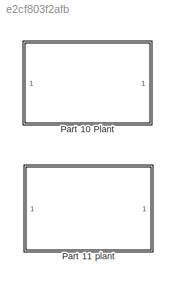
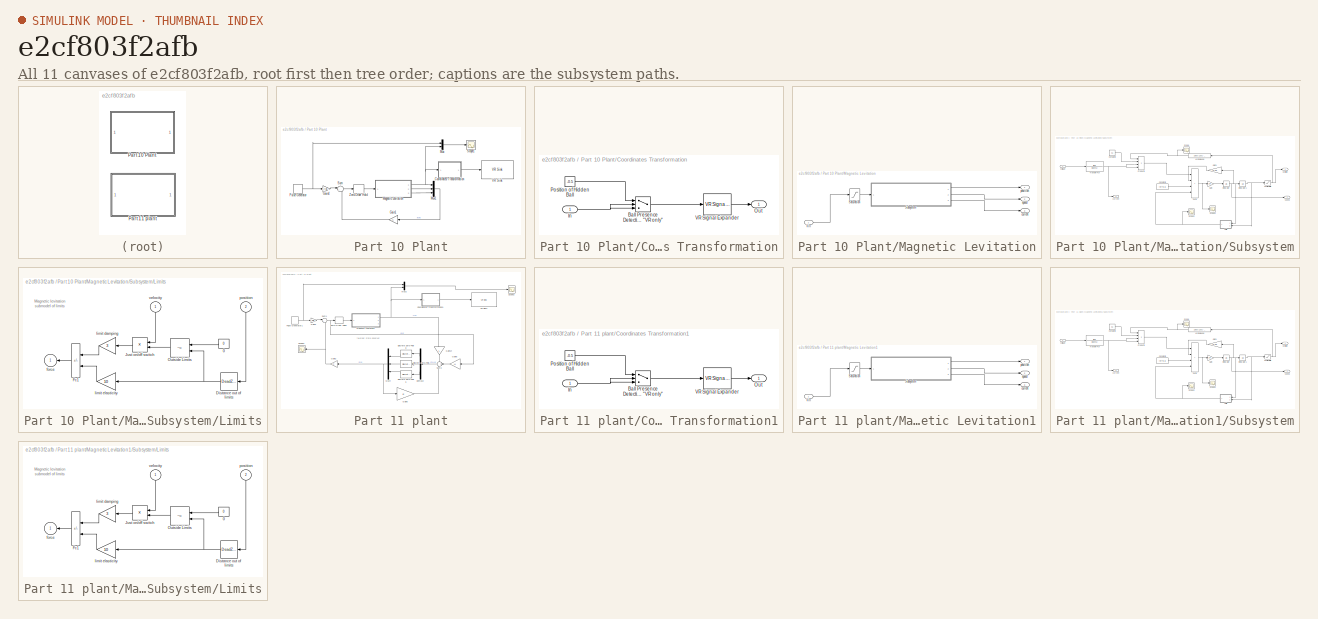
[diagram: thumbnail index - all 11 canvases of the model, root first then tree order]
MODEL slx_e2cf803f2afb
KIND model
CONFIG AbsTol = 1e-5
CONFIG EnableMultiTasking = off
CONFIG FixedStep = 1e-3
CONFIG MaxStep = 0.001
CONFIG MinStep = auto
CONFIG RelTol = 1e-3
CONFIG SampleTimeConstraint = Unconstrained
CONFIG Solver = ode5
CONFIG SolverName = ode5
CONFIG StartTime = 0.0
CONFIG StopTime = 5
WORKSPACE source: MATLAB code (in-file)
WORKSPACE Ts = 1e-3  (= 0.001)
BLOCK [SubSystem] Part 10 Plant
  Ports = []
BLOCK [SubSystem] Part 10 Plant/Coordinates Transformation
  Permissions = ReadOnly
  Ports = [1, 1]
BLOCK [Switch] Part 10 Plant/Coordinates Transformation/Ball Presence Detection Value > Threshold = Ball Not Present 1 for "VR only"
  SaturateOnIntegerOverflow = off
  Threshold = 1
BLOCK [Inport] Part 10 Plant/Coordinates Transformation/In
BLOCK [Outport] Part 10 Plant/Coordinates Transformation/Out
BLOCK [Constant] Part 10 Plant/Coordinates Transformation/Position of Hidden Ball
  Value = -0.5
BLOCK [Reference] Part 10 Plant/Coordinates Transformation/VR Signal Expander  REF=vrlib/VR Signal Expander
  Ports = [1, 1]
  SourceBlock = vrlib/VR Signal Expander
  SourceType = VR Signal Expander
BLOCK [Gain] Part 10 Plant/Gain1
  Gain = K
  Multiplication = Matrix(K*u)
BLOCK [Gain] Part 10 Plant/Gain4
  Gain = k_follow*1.01
BLOCK [SubSystem] Part 10 Plant/Magnetic Levitation
  Ports = [1, 3]
BLOCK [Saturate] Part 10 Plant/Magnetic Levitation/Saturation
  LowerLimit = 0
  UpperLimit = 10
  ZeroCross = off
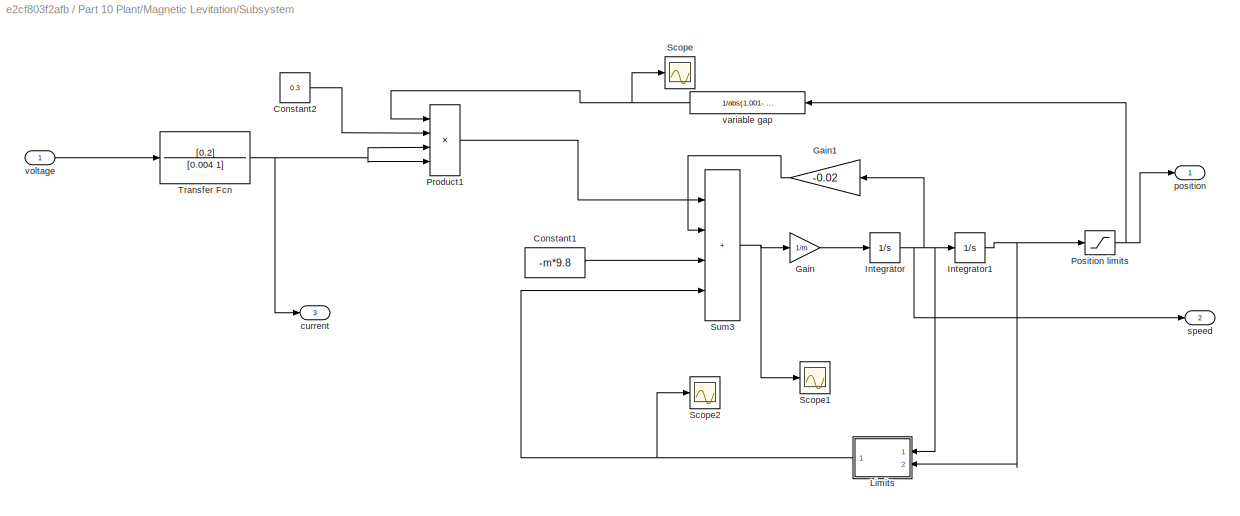
BLOCK [SubSystem] Part 10 Plant/Magnetic Levitation/Subsystem
  Ports = [1, 3]
BLOCK [Constant] Part 10 Plant/Magnetic Levitation/Subsystem/Constant1
  Value = -m*9.8
BLOCK [Constant] Part 10 Plant/Magnetic Levitation/Subsystem/Constant2
  Value = 0.3
BLOCK [Gain] Part 10 Plant/Magnetic Levitation/Subsystem/Gain
  Gain = 1/m
BLOCK [Gain] Part 10 Plant/Magnetic Levitation/Subsystem/Gain1
  Gain = -0.02
BLOCK [Integrator] Part 10 Plant/Magnetic Levitation/Subsystem/Integrator
  Ports = [1, 1]
BLOCK [Integrator] Part 10 Plant/Magnetic Levitation/Subsystem/Integrator1
  LimitOutput = on
  LowerSaturationLimit = 0
  Ports = [1, 1]
  UpperSaturationLimit = 1
BLOCK [SubSystem] Part 10 Plant/Magnetic Levitation/Subsystem/Limits
  Ports = [2, 1]
  ShowPortLabels = none
BLOCK [Constant] Part 10 Plant/Magnetic Levitation/Subsystem/Limits/0
  Value = 0
BLOCK [DeadZone] Part 10 Plant/Magnetic Levitation/Subsystem/Limits/Distance out of limits
  LowerValue = 0.002
  UpperValue = 1
  ZeroCross = off
BLOCK [Sum] Part 10 Plant/Magnetic Levitation/Subsystem/Limits/Fc1
  IconShape = rectangular
  InputSameDT = on
  Inputs = --
  OutDataTypeStr = Inherit: Same as first input
  Ports = [2, 1]
  SaturateOnIntegerOverflow = on
BLOCK [Product] Part 10 Plant/Magnetic Levitation/Subsystem/Limits/Just on//off switch 
  InputSameDT = on
  OutDataTypeStr = Inherit: Same as first input
  Ports = [2, 1]
  SaturateOnIntegerOverflow = on
BLOCK [RelationalOperator] Part 10 Plant/Magnetic Levitation/Subsystem/Limits/Outside Limits
  Operator = ~=
  Ports = [2, 1]
BLOCK [Outport] Part 10 Plant/Magnetic Levitation/Subsystem/Limits/force
BLOCK [Gain] Part 10 Plant/Magnetic Levitation/Subsystem/Limits/limit damping
  Gain = 3
  OutDataTypeStr = Inherit: Same as input
  ParamDataTypeStr = Inherit: Same as input
  SaturateOnIntegerOverflow = on
BLOCK [Gain] Part 10 Plant/Magnetic Levitation/Subsystem/Limits/limit elasticity
  Gain = 10
  OutDataTypeStr = Inherit: Same as input
  ParamDataTypeStr = Inherit: Same as input
  SaturateOnIntegerOverflow = on
BLOCK [Inport] Part 10 Plant/Magnetic Levitation/Subsystem/Limits/position
  Port = 2
BLOCK [Inport] Part 10 Plant/Magnetic Levitation/Subsystem/Limits/velocity
BLOCK [Saturate] Part 10 Plant/Magnetic Levitation/Subsystem/Position limits
  LowerLimit = 0.001
  UpperLimit = 0.998
  ZeroCross = off
BLOCK [Product] Part 10 Plant/Magnetic Levitation/Subsystem/Product1
  Inputs = 4
  Ports = [4, 1]
BLOCK [Scope] Part 10 Plant/Magnetic Levitation/Subsystem/Scope
  Floating = off
  NumInputPorts = 1
  Ports = [1]
  ScopeSpecificationString = Simulink.scopes.TimeScopeBlockCfg('CurrentConfiguration', extmgr.ConfigurationSet(extmgr.Configuration('Core','General UI',true),extmgr.Configuration('Core','Source UI',true),extmgr.Configuration('Sources','WiredSimulink',true,'DataLoggingVariableName','ScopeData1'),extmgr.Configuration('Visuals','Time Domain',true,'SerializedDisplays',{struct('MinYLimReal','-40.54054','MaxYLimReal','374.87487','Y...<+1381ch>
BLOCK [Scope] Part 10 Plant/Magnetic Levitation/Subsystem/Scope1
  Floating = off
  NumInputPorts = 1
  Ports = [1]
  ScopeSpecificationString = Simulink.scopes.TimeScopeBlockCfg('CurrentConfiguration', extmgr.ConfigurationSet(extmgr.Configuration('Core','General UI',true),extmgr.Configuration('Core','Source UI',true),extmgr.Configuration('Sources','WiredSimulink',true,'DataLoggingVariableName','ScopeData2'),extmgr.Configuration('Visuals','Time Domain',true,'SerializedDisplays',{struct('MinYLimReal','-21376391083219120442781708779858395089...<+3841ch>
BLOCK [Scope] Part 10 Plant/Magnetic Levitation/Subsystem/Scope2
  Floating = off
  NumInputPorts = 1
  Ports = [1]
  ScopeSpecificationString = Simulink.scopes.TimeScopeBlockCfg('CurrentConfiguration', extmgr.ConfigurationSet(extmgr.Configuration('Core','General UI',true),extmgr.Configuration('Core','Source UI',true),extmgr.Configuration('Sources','WiredSimulink',true,'DataLoggingVariableName','ScopeData3'),extmgr.Configuration('Visuals','Time Domain',true,'SerializedDisplays',{struct('MinYLimReal','-0.1107','MaxYLimReal','1.19629','YLabe...<+1363ch>
BLOCK [Sum] Part 10 Plant/Magnetic Levitation/Subsystem/Sum3
  IconShape = rectangular
  Inputs = ++++
  Ports = [4, 1]
BLOCK [TransferFcn] Part 10 Plant/Magnetic Levitation/Subsystem/Transfer Fcn
  Denominator = [0.004 1]
  Numerator = [0.2]
BLOCK [Outport] Part 10 Plant/Magnetic Levitation/Subsystem/current
  Port = 3
BLOCK [Outport] Part 10 Plant/Magnetic Levitation/Subsystem/position 
BLOCK [Outport] Part 10 Plant/Magnetic Levitation/Subsystem/speed
  Port = 2
BLOCK [Fcn] Part 10 Plant/Magnetic Levitation/Subsystem/variable gap
  Expr = 1/abs(1.001- u)
BLOCK [Inport] Part 10 Plant/Magnetic Levitation/Subsystem/voltage
BLOCK [Inport] Part 10 Plant/Magnetic Levitation/Vin
BLOCK [Outport] Part 10 Plant/Magnetic Levitation/current
  Port = 3
BLOCK [Outport] Part 10 Plant/Magnetic Levitation/position
BLOCK [Outport] Part 10 Plant/Magnetic Levitation/speed
  Port = 2
BLOCK [Mux] Part 10 Plant/Mux
  DisplayOption = bar
  Inputs = 2
  Ports = [2, 1]
BLOCK [Mux] Part 10 Plant/Mux1
  DisplayOption = bar
  Inputs = 3
  Ports = [3, 1]
BLOCK [DiscretePulseGenerator] Part 10 Plant/Pulse Generator
  Amplitude = yd
  Period = 11
  Ports = [0, 1]
  PulseType = Time based
  PulseWidth = 50
BLOCK [Scope] Part 10 Plant/Scope1
  Floating = off
  NumInputPorts = 1
  Ports = [1]
  ScopeSpecificationString = Simulink.scopes.TimeScopeBlockCfg('CurrentConfiguration', extmgr.ConfigurationSet(extmgr.Configuration('Core','General UI',true),extmgr.Configuration('Core','Source UI',true),extmgr.Configuration('Sources','WiredSimulink',true,'DataLoggingVariableName','ScopeData1'),extmgr.Configuration('Visuals','Time Domain',true,'SerializedDisplays',{struct('MinYLimReal','-0.06418','MaxYLimReal','0.5876','YLabe...<+1469ch>
BLOCK [Sum] Part 10 Plant/Sum
  InputSameDT = on
  Inputs = |+-
  OutDataTypeStr = Inherit: Same as first input
  Ports = [2, 1]
  SaturateOnIntegerOverflow = on
BLOCK [Reference] Part 10 Plant/VR Sink  REF=vrlib/VR Sink
  InstantiateOnLoad = on
  Ports = [1]
  SourceBlock = vrlib/VR Sink
  SourceType = Virtual Reality Sink
BLOCK [ZeroOrderHold] Part 10 Plant/Zero-Order Hold
  SampleTime = 0.01
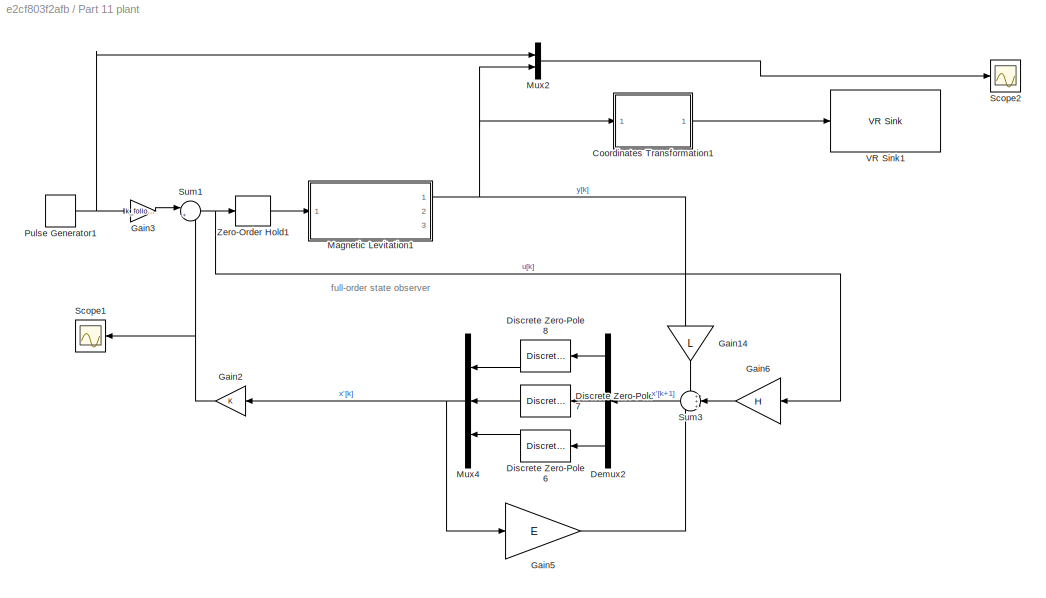
BLOCK [SubSystem] Part 11 plant
  Ports = []
BLOCK [SubSystem] Part 11 plant/Coordinates Transformation1
  Permissions = ReadOnly
  Ports = [1, 1]
BLOCK [Switch] Part 11 plant/Coordinates Transformation1/Ball Presence Detection Value > Threshold = Ball Not Present 1 for "VR only"
  SaturateOnIntegerOverflow = off
  Threshold = 1
BLOCK [Inport] Part 11 plant/Coordinates Transformation1/In
BLOCK [Outport] Part 11 plant/Coordinates Transformation1/Out
BLOCK [Constant] Part 11 plant/Coordinates Transformation1/Position of Hidden Ball
  Value = -0.5
BLOCK [Reference] Part 11 plant/Coordinates Transformation1/VR Signal Expander  REF=vrlib/VR Signal Expander
  Ports = [1, 1]
  SourceBlock = vrlib/VR Signal Expander
  SourceType = VR Signal Expander
BLOCK [Demux] Part 11 plant/Demux2
  Outputs = 3
  Ports = [1, 3]
BLOCK [DiscreteZeroPole] Part 11 plant/Discrete Zero-Pole6
  Gain = 1
  Poles = [0]
  SampleTime = 0.01
  Zeros = []
BLOCK [DiscreteZeroPole] Part 11 plant/Discrete Zero-Pole7
  Gain = 1
  Poles = [0]
  SampleTime = 0.01
  Zeros = []
BLOCK [DiscreteZeroPole] Part 11 plant/Discrete Zero-Pole8
  Gain = 1
  Poles = [0]
  SampleTime = 0.01
  Zeros = []
BLOCK [Gain] Part 11 plant/Gain14
  Gain = L
  Multiplication = Matrix(K*u)
BLOCK [Gain] Part 11 plant/Gain2
  Gain = K
  Multiplication = Matrix(K*u)
BLOCK [Gain] Part 11 plant/Gain3
  Gain = k_follow*0.39
BLOCK [Gain] Part 11 plant/Gain5
  Gain = E
  Multiplication = Matrix(K*u)
BLOCK [Gain] Part 11 plant/Gain6
  Gain = H
  Multiplication = Matrix(K*u)
BLOCK [SubSystem] Part 11 plant/Magnetic Levitation1
  Ports = [1, 3]
BLOCK [Saturate] Part 11 plant/Magnetic Levitation1/Saturation
  LowerLimit = 0
  UpperLimit = 10
  ZeroCross = off
BLOCK [SubSystem] Part 11 plant/Magnetic Levitation1/Subsystem
  Ports = [1, 3]
BLOCK [Constant] Part 11 plant/Magnetic Levitation1/Subsystem/Constant1
  Value = -m*9.8
BLOCK [Constant] Part 11 plant/Magnetic Levitation1/Subsystem/Constant2
  Value = 0.3
BLOCK [Gain] Part 11 plant/Magnetic Levitation1/Subsystem/Gain
  Gain = 1/m
BLOCK [Gain] Part 11 plant/Magnetic Levitation1/Subsystem/Gain1
  Gain = -0.02
BLOCK [Integrator] Part 11 plant/Magnetic Levitation1/Subsystem/Integrator
  Ports = [1, 1]
BLOCK [Integrator] Part 11 plant/Magnetic Levitation1/Subsystem/Integrator1
  LimitOutput = on
  LowerSaturationLimit = 0
  Ports = [1, 1]
  UpperSaturationLimit = 1
BLOCK [SubSystem] Part 11 plant/Magnetic Levitation1/Subsystem/Limits
  Ports = [2, 1]
  ShowPortLabels = none
BLOCK [Constant] Part 11 plant/Magnetic Levitation1/Subsystem/Limits/0
  Value = 0
BLOCK [DeadZone] Part 11 plant/Magnetic Levitation1/Subsystem/Limits/Distance out of limits
  LowerValue = 0.002
  UpperValue = 1
  ZeroCross = off
BLOCK [Sum] Part 11 plant/Magnetic Levitation1/Subsystem/Limits/Fc1
  IconShape = rectangular
  InputSameDT = on
  Inputs = --
  OutDataTypeStr = Inherit: Same as first input
  Ports = [2, 1]
  SaturateOnIntegerOverflow = on
BLOCK [Product] Part 11 plant/Magnetic Levitation1/Subsystem/Limits/Just on//off switch 
  InputSameDT = on
  OutDataTypeStr = Inherit: Same as first input
  Ports = [2, 1]
  SaturateOnIntegerOverflow = on
BLOCK [RelationalOperator] Part 11 plant/Magnetic Levitation1/Subsystem/Limits/Outside Limits
  Operator = ~=
  Ports = [2, 1]
BLOCK [Outport] Part 11 plant/Magnetic Levitation1/Subsystem/Limits/force
BLOCK [Gain] Part 11 plant/Magnetic Levitation1/Subsystem/Limits/limit damping
  Gain = 3
  OutDataTypeStr = Inherit: Same as input
  ParamDataTypeStr = Inherit: Same as input
  SaturateOnIntegerOverflow = on
BLOCK [Gain] Part 11 plant/Magnetic Levitation1/Subsystem/Limits/limit elasticity
  Gain = 10
  OutDataTypeStr = Inherit: Same as input
  ParamDataTypeStr = Inherit: Same as input
  SaturateOnIntegerOverflow = on
BLOCK [Inport] Part 11 plant/Magnetic Levitation1/Subsystem/Limits/position
  Port = 2
BLOCK [Inport] Part 11 plant/Magnetic Levitation1/Subsystem/Limits/velocity
BLOCK [Saturate] Part 11 plant/Magnetic Levitation1/Subsystem/Position limits
  LowerLimit = 0.001
  UpperLimit = 0.998
  ZeroCross = off
BLOCK [Product] Part 11 plant/Magnetic Levitation1/Subsystem/Product1
  Inputs = 4
  Ports = [4, 1]
BLOCK [Scope] Part 11 plant/Magnetic Levitation1/Subsystem/Scope
  Floating = off
  NumInputPorts = 1
  Ports = [1]
  ScopeSpecificationString = Simulink.scopes.TimeScopeBlockCfg('CurrentConfiguration', extmgr.ConfigurationSet(extmgr.Configuration('Core','General UI',true),extmgr.Configuration('Core','Source UI',true),extmgr.Configuration('Sources','WiredSimulink',true,'DataLoggingVariableName','ScopeData1'),extmgr.Configuration('Visuals','Time Domain',true,'SerializedDisplays',{struct('MinYLimReal','-40.54054','MaxYLimReal','374.87487','Y...<+1381ch>
BLOCK [Scope] Part 11 plant/Magnetic Levitation1/Subsystem/Scope1
  Floating = off
  NumInputPorts = 1
  Ports = [1]
  ScopeSpecificationString = Simulink.scopes.TimeScopeBlockCfg('CurrentConfiguration', extmgr.ConfigurationSet(extmgr.Configuration('Core','General UI',true),extmgr.Configuration('Core','Source UI',true),extmgr.Configuration('Sources','WiredSimulink',true,'DataLoggingVariableName','ScopeData2'),extmgr.Configuration('Visuals','Time Domain',true,'SerializedDisplays',{struct('MinYLimReal','-21376391083219120442781708779858395089...<+3841ch>
BLOCK [Scope] Part 11 plant/Magnetic Levitation1/Subsystem/Scope2
  Floating = off
  NumInputPorts = 1
  Ports = [1]
  ScopeSpecificationString = Simulink.scopes.TimeScopeBlockCfg('CurrentConfiguration', extmgr.ConfigurationSet(extmgr.Configuration('Core','General UI',true),extmgr.Configuration('Core','Source UI',true),extmgr.Configuration('Sources','WiredSimulink',true,'DataLoggingVariableName','ScopeData3'),extmgr.Configuration('Visuals','Time Domain',true,'SerializedDisplays',{struct('MinYLimReal','-0.1107','MaxYLimReal','1.19629','YLabe...<+1363ch>
BLOCK [Sum] Part 11 plant/Magnetic Levitation1/Subsystem/Sum3
  IconShape = rectangular
  Inputs = ++++
  Ports = [4, 1]
BLOCK [TransferFcn] Part 11 plant/Magnetic Levitation1/Subsystem/Transfer Fcn
  Denominator = [0.004 1]
  Numerator = [0.2]
BLOCK [Outport] Part 11 plant/Magnetic Levitation1/Subsystem/current
  Port = 3
BLOCK [Outport] Part 11 plant/Magnetic Levitation1/Subsystem/position 
BLOCK [Outport] Part 11 plant/Magnetic Levitation1/Subsystem/speed
  Port = 2
BLOCK [Fcn] Part 11 plant/Magnetic Levitation1/Subsystem/variable gap
  Expr = 1/abs(1.001- u)
BLOCK [Inport] Part 11 plant/Magnetic Levitation1/Subsystem/voltage
BLOCK [Inport] Part 11 plant/Magnetic Levitation1/Vin
BLOCK [Outport] Part 11 plant/Magnetic Levitation1/current
  Port = 3
BLOCK [Outport] Part 11 plant/Magnetic Levitation1/position
BLOCK [Outport] Part 11 plant/Magnetic Levitation1/speed
  Port = 2
BLOCK [Mux] Part 11 plant/Mux2
  DisplayOption = bar
  Inputs = 2
  Ports = [2, 1]
BLOCK [Mux] Part 11 plant/Mux4
  DisplayOption = bar
  Inputs = 3
  Ports = [3, 1]
BLOCK [DiscretePulseGenerator] Part 11 plant/Pulse Generator1
  Amplitude = yd
  Period = 11
  Ports = [0, 1]
  PulseType = Time based
  PulseWidth = 50
BLOCK [Scope] Part 11 plant/Scope1
  Floating = off
  NumInputPorts = 1
  Ports = [1]
  ScopeSpecificationString = Simulink.scopes.TimeScopeBlockCfg('CurrentConfiguration', extmgr.ConfigurationSet(extmgr.Configuration('Core','General UI',true),extmgr.Configuration('Core','Source UI',true),extmgr.Configuration('Sources','WiredSimulink',true,'DataLoggingVariableName','ScopeData1'),extmgr.Configuration('Visuals','Time Domain',true,'SerializedDisplays',{struct('MinYLimReal','-16611476444762614587135434460960474579...<+1940ch>
BLOCK [Scope] Part 11 plant/Scope2
  Floating = off
  NumInputPorts = 1
  Ports = [1]
  ScopeSpecificationString = Simulink.scopes.TimeScopeBlockCfg('CurrentConfiguration', extmgr.ConfigurationSet(extmgr.Configuration('Core','General UI',true),extmgr.Configuration('Core','Source UI',true),extmgr.Configuration('Sources','WiredSimulink',true,'DataLoggingVariableName','ScopeData2'),extmgr.Configuration('Visuals','Time Domain',true,'SerializedDisplays',{struct('MinYLimReal','-0.04762','MaxYLimReal','0.43863','YLab...<+1415ch>
BLOCK [Sum] Part 11 plant/Sum1
  InputSameDT = on
  Inputs = |+-
  OutDataTypeStr = Inherit: Same as first input
  Ports = [2, 1]
  SaturateOnIntegerOverflow = on
BLOCK [Sum] Part 11 plant/Sum3
  Inputs = +++
  Ports = [3, 1]
BLOCK [Reference] Part 11 plant/VR Sink1  REF=vrlib/VR Sink
  InstantiateOnLoad = on
  Ports = [1]
  SourceBlock = vrlib/VR Sink
  SourceType = Virtual Reality Sink
BLOCK [ZeroOrderHold] Part 11 plant/Zero-Order Hold1
  SampleTime = 0.01
ANNOTATION Part 10 Plant/Magnetic Levitation/Subsystem/Limits: Magnetic levitation submodel of limits
ANNOTATION Part 11 plant: full-order state observer
ANNOTATION Part 11 plant/Magnetic Levitation1/Subsystem/Limits: Magnetic levitation submodel of limits
LINE Part 10 Plant/Coordinates Transformation/Ball Presence Detection Value > Threshold = Ball Not Present 1 for "VR only":1 -> Part 10 Plant/Coordinates Transformation/VR Signal Expander:1
NET Part 10 Plant/Coordinates Transformation/In:1 -> Part 10 Plant/Coordinates Transformation/Ball Presence Detection Value > Threshold = Ball Not Present 1 for "VR only":2, Part 10 Plant/Coordinates Transformation/Ball Presence Detection Value > Threshold = Ball Not Present 1 for "VR only":3
LINE Part 10 Plant/Coordinates Transformation/Position of Hidden Ball:1 -> Part 10 Plant/Coordinates Transformation/Ball Presence Detection Value > Threshold = Ball Not Present 1 for "VR only":1
LINE Part 10 Plant/Coordinates Transformation/VR Signal Expander:1 -> Part 10 Plant/Coordinates Transformation/Out:1
LINE Part 10 Plant/Coordinates Transformation:1 -> Part 10 Plant/VR Sink:1
LINE Part 10 Plant/Gain1:1 -> Part 10 Plant/Sum:2
LINE Part 10 Plant/Gain4:1 -> Part 10 Plant/Sum:1
LINE Part 10 Plant/Magnetic Levitation/Saturation:1 -> Part 10 Plant/Magnetic Levitation/Subsystem:1
LINE Part 10 Plant/Magnetic Levitation/Subsystem/Constant1:1 -> Part 10 Plant/Magnetic Levitation/Subsystem/Sum3:3
LINE Part 10 Plant/Magnetic Levitation/Subsystem/Constant2:1 -> Part 10 Plant/Magnetic Levitation/Subsystem/Product1:2
LINE Part 10 Plant/Magnetic Levitation/Subsystem/Gain1:1 -> Part 10 Plant/Magnetic Levitation/Subsystem/Sum3:2
LINE Part 10 Plant/Magnetic Levitation/Subsystem/Gain:1 -> Part 10 Plant/Magnetic Levitation/Subsystem/Integrator:1
NET Part 10 Plant/Magnetic Levitation/Subsystem/Integrator1:1 -> Part 10 Plant/Magnetic Levitation/Subsystem/Limits:2, Part 10 Plant/Magnetic Levitation/Subsystem/Position limits:1
NET Part 10 Plant/Magnetic Levitation/Subsystem/Integrator:1 -> Part 10 Plant/Magnetic Levitation/Subsystem/Gain1:1, Part 10 Plant/Magnetic Levitation/Subsystem/Integrator1:1, Part 10 Plant/Magnetic Levitation/Subsystem/Limits:1, Part 10 Plant/Magnetic Levitation/Subsystem/speed:1
LINE Part 10 Plant/Magnetic Levitation/Subsystem/Limits/0:1 -> Part 10 Plant/Magnetic Levitation/Subsystem/Limits/Outside Limits:1
NET Part 10 Plant/Magnetic Levitation/Subsystem/Limits/Distance out of limits:1 -> Part 10 Plant/Magnetic Levitation/Subsystem/Limits/Outside Limits:2, Part 10 Plant/Magnetic Levitation/Subsystem/Limits/limit elasticity:1
LINE Part 10 Plant/Magnetic Levitation/Subsystem/Limits/Fc1:1 -> Part 10 Plant/Magnetic Levitation/Subsystem/Limits/force:1
LINE Part 10 Plant/Magnetic Levitation/Subsystem/Limits/Just on//off switch :1 -> Part 10 Plant/Magnetic Levitation/Subsystem/Limits/limit damping:1
LINE Part 10 Plant/Magnetic Levitation/Subsystem/Limits/Outside Limits:1 -> Part 10 Plant/Magnetic Levitation/Subsystem/Limits/Just on//off switch :2
LINE Part 10 Plant/Magnetic Levitation/Subsystem/Limits/limit damping:1 -> Part 10 Plant/Magnetic Levitation/Subsystem/Limits/Fc1:1
LINE Part 10 Plant/Magnetic Levitation/Subsystem/Limits/limit elasticity:1 -> Part 10 Plant/Magnetic Levitation/Subsystem/Limits/Fc1:2
LINE Part 10 Plant/Magnetic Levitation/Subsystem/Limits/position:1 -> Part 10 Plant/Magnetic Levitation/Subsystem/Limits/Distance out of limits:1
LINE Part 10 Plant/Magnetic Levitation/Subsystem/Limits/velocity:1 -> Part 10 Plant/Magnetic Levitation/Subsystem/Limits/Just on//off switch :1
NET Part 10 Plant/Magnetic Levitation/Subsystem/Limits:1 -> Part 10 Plant/Magnetic Levitation/Subsystem/Scope2:1, Part 10 Plant/Magnetic Levitation/Subsystem/Sum3:4
NET Part 10 Plant/Magnetic Levitation/Subsystem/Position limits:1 -> Part 10 Plant/Magnetic Levitation/Subsystem/position :1, Part 10 Plant/Magnetic Levitation/Subsystem/variable gap:1
LINE Part 10 Plant/Magnetic Levitation/Subsystem/Product1:1 -> Part 10 Plant/Magnetic Levitation/Subsystem/Sum3:1
NET Part 10 Plant/Magnetic Levitation/Subsystem/Sum3:1 -> Part 10 Plant/Magnetic Levitation/Subsystem/Gain:1, Part 10 Plant/Magnetic Levitation/Subsystem/Scope1:1
NET Part 10 Plant/Magnetic Levitation/Subsystem/Transfer Fcn:1 -> Part 10 Plant/Magnetic Levitation/Subsystem/Product1:3, Part 10 Plant/Magnetic Levitation/Subsystem/Product1:4, Part 10 Plant/Magnetic Levitation/Subsystem/current:1
NET Part 10 Plant/Magnetic Levitation/Subsystem/variable gap:1 -> Part 10 Plant/Magnetic Levitation/Subsystem/Product1:1, Part 10 Plant/Magnetic Levitation/Subsystem/Scope:1
LINE Part 10 Plant/Magnetic Levitation/Subsystem/voltage:1 -> Part 10 Plant/Magnetic Levitation/Subsystem/Transfer Fcn:1
LINE Part 10 Plant/Magnetic Levitation/Subsystem:1 -> Part 10 Plant/Magnetic Levitation/position:1
LINE Part 10 Plant/Magnetic Levitation/Subsystem:2 -> Part 10 Plant/Magnetic Levitation/speed:1
LINE Part 10 Plant/Magnetic Levitation/Subsystem:3 -> Part 10 Plant/Magnetic Levitation/current:1
LINE Part 10 Plant/Magnetic Levitation/Vin:1 -> Part 10 Plant/Magnetic Levitation/Saturation:1
NET Part 10 Plant/Magnetic Levitation:1 -> Part 10 Plant/Coordinates Transformation:1, Part 10 Plant/Mux1:1, Part 10 Plant/Mux:2
LINE Part 10 Plant/Magnetic Levitation:2 -> Part 10 Plant/Mux1:2
LINE Part 10 Plant/Magnetic Levitation:3 -> Part 10 Plant/Mux1:3
LINE Part 10 Plant/Mux1:1 -> Part 10 Plant/Gain1:1
LINE Part 10 Plant/Mux:1 -> Part 10 Plant/Scope1:1
NET Part 10 Plant/Pulse Generator:1 -> Part 10 Plant/Gain4:1, Part 10 Plant/Mux:1
LINE Part 10 Plant/Sum:1 -> Part 10 Plant/Zero-Order Hold:1
LINE Part 10 Plant/Zero-Order Hold:1 -> Part 10 Plant/Magnetic Levitation:1
LINE Part 11 plant/Coordinates Transformation1/Ball Presence Detection Value > Threshold = Ball Not Present 1 for "VR only":1 -> Part 11 plant/Coordinates Transformation1/VR Signal Expander:1
NET Part 11 plant/Coordinates Transformation1/In:1 -> Part 11 plant/Coordinates Transformation1/Ball Presence Detection Value > Threshold = Ball Not Present 1 for "VR only":2, Part 11 plant/Coordinates Transformation1/Ball Presence Detection Value > Threshold = Ball Not Present 1 for "VR only":3
LINE Part 11 plant/Coordinates Transformation1/Position of Hidden Ball:1 -> Part 11 plant/Coordinates Transformation1/Ball Presence Detection Value > Threshold = Ball Not Present 1 for "VR only":1
LINE Part 11 plant/Coordinates Transformation1/VR Signal Expander:1 -> Part 11 plant/Coordinates Transformation1/Out:1
LINE Part 11 plant/Coordinates Transformation1:1 -> Part 11 plant/VR Sink1:1
LINE Part 11 plant/Demux2:1 -> Part 11 plant/Discrete Zero-Pole8:1
LINE Part 11 plant/Demux2:2 -> Part 11 plant/Discrete Zero-Pole7:1
LINE Part 11 plant/Demux2:3 -> Part 11 plant/Discrete Zero-Pole6:1
LINE Part 11 plant/Discrete Zero-Pole6:1 -> Part 11 plant/Mux4:3
LINE Part 11 plant/Discrete Zero-Pole7:1 -> Part 11 plant/Mux4:2
LINE Part 11 plant/Discrete Zero-Pole8:1 -> Part 11 plant/Mux4:1
LINE Part 11 plant/Gain14:1 -> Part 11 plant/Sum3:1
NET Part 11 plant/Gain2:1 -> Part 11 plant/Scope1:1, Part 11 plant/Sum1:2
LINE Part 11 plant/Gain3:1 -> Part 11 plant/Sum1:1
LINE Part 11 plant/Gain5:1 -> Part 11 plant/Sum3:3
LINE Part 11 plant/Gain6:1 -> Part 11 plant/Sum3:2
LINE Part 11 plant/Magnetic Levitation1/Saturation:1 -> Part 11 plant/Magnetic Levitation1/Subsystem:1
LINE Part 11 plant/Magnetic Levitation1/Subsystem/Constant1:1 -> Part 11 plant/Magnetic Levitation1/Subsystem/Sum3:3
LINE Part 11 plant/Magnetic Levitation1/Subsystem/Constant2:1 -> Part 11 plant/Magnetic Levitation1/Subsystem/Product1:2
LINE Part 11 plant/Magnetic Levitation1/Subsystem/Gain1:1 -> Part 11 plant/Magnetic Levitation1/Subsystem/Sum3:2
LINE Part 11 plant/Magnetic Levitation1/Subsystem/Gain:1 -> Part 11 plant/Magnetic Levitation1/Subsystem/Integrator:1
NET Part 11 plant/Magnetic Levitation1/Subsystem/Integrator1:1 -> Part 11 plant/Magnetic Levitation1/Subsystem/Limits:2, Part 11 plant/Magnetic Levitation1/Subsystem/Position limits:1
NET Part 11 plant/Magnetic Levitation1/Subsystem/Integrator:1 -> Part 11 plant/Magnetic Levitation1/Subsystem/Gain1:1, Part 11 plant/Magnetic Levitation1/Subsystem/Integrator1:1, Part 11 plant/Magnetic Levitation1/Subsystem/Limits:1, Part 11 plant/Magnetic Levitation1/Subsystem/speed:1
LINE Part 11 plant/Magnetic Levitation1/Subsystem/Limits/0:1 -> Part 11 plant/Magnetic Levitation1/Subsystem/Limits/Outside Limits:1
NET Part 11 plant/Magnetic Levitation1/Subsystem/Limits/Distance out of limits:1 -> Part 11 plant/Magnetic Levitation1/Subsystem/Limits/Outside Limits:2, Part 11 plant/Magnetic Levitation1/Subsystem/Limits/limit elasticity:1
LINE Part 11 plant/Magnetic Levitation1/Subsystem/Limits/Fc1:1 -> Part 11 plant/Magnetic Levitation1/Subsystem/Limits/force:1
LINE Part 11 plant/Magnetic Levitation1/Subsystem/Limits/Just on//off switch :1 -> Part 11 plant/Magnetic Levitation1/Subsystem/Limits/limit damping:1
LINE Part 11 plant/Magnetic Levitation1/Subsystem/Limits/Outside Limits:1 -> Part 11 plant/Magnetic Levitation1/Subsystem/Limits/Just on//off switch :2
LINE Part 11 plant/Magnetic Levitation1/Subsystem/Limits/limit damping:1 -> Part 11 plant/Magnetic Levitation1/Subsystem/Limits/Fc1:1
LINE Part 11 plant/Magnetic Levitation1/Subsystem/Limits/limit elasticity:1 -> Part 11 plant/Magnetic Levitation1/Subsystem/Limits/Fc1:2
LINE Part 11 plant/Magnetic Levitation1/Subsystem/Limits/position:1 -> Part 11 plant/Magnetic Levitation1/Subsystem/Limits/Distance out of limits:1
LINE Part 11 plant/Magnetic Levitation1/Subsystem/Limits/velocity:1 -> Part 11 plant/Magnetic Levitation1/Subsystem/Limits/Just on//off switch :1
NET Part 11 plant/Magnetic Levitation1/Subsystem/Limits:1 -> Part 11 plant/Magnetic Levitation1/Subsystem/Scope2:1, Part 11 plant/Magnetic Levitation1/Subsystem/Sum3:4
NET Part 11 plant/Magnetic Levitation1/Subsystem/Position limits:1 -> Part 11 plant/Magnetic Levitation1/Subsystem/position :1, Part 11 plant/Magnetic Levitation1/Subsystem/variable gap:1
LINE Part 11 plant/Magnetic Levitation1/Subsystem/Product1:1 -> Part 11 plant/Magnetic Levitation1/Subsystem/Sum3:1
NET Part 11 plant/Magnetic Levitation1/Subsystem/Sum3:1 -> Part 11 plant/Magnetic Levitation1/Subsystem/Gain:1, Part 11 plant/Magnetic Levitation1/Subsystem/Scope1:1
NET Part 11 plant/Magnetic Levitation1/Subsystem/Transfer Fcn:1 -> Part 11 plant/Magnetic Levitation1/Subsystem/Product1:3, Part 11 plant/Magnetic Levitation1/Subsystem/Product1:4, Part 11 plant/Magnetic Levitation1/Subsystem/current:1
NET Part 11 plant/Magnetic Levitation1/Subsystem/variable gap:1 -> Part 11 plant/Magnetic Levitation1/Subsystem/Product1:1, Part 11 plant/Magnetic Levitation1/Subsystem/Scope:1
LINE Part 11 plant/Magnetic Levitation1/Subsystem/voltage:1 -> Part 11 plant/Magnetic Levitation1/Subsystem/Transfer Fcn:1
LINE Part 11 plant/Magnetic Levitation1/Subsystem:1 -> Part 11 plant/Magnetic Levitation1/position:1
LINE Part 11 plant/Magnetic Levitation1/Subsystem:2 -> Part 11 plant/Magnetic Levitation1/speed:1
LINE Part 11 plant/Magnetic Levitation1/Subsystem:3 -> Part 11 plant/Magnetic Levitation1/current:1
LINE Part 11 plant/Magnetic Levitation1/Vin:1 -> Part 11 plant/Magnetic Levitation1/Saturation:1
NET Part 11 plant/Magnetic Levitation1:1 -> Part 11 plant/Coordinates Transformation1:1, Part 11 plant/Gain14:1, Part 11 plant/Mux2:2
LINE Part 11 plant/Mux2:1 -> Part 11 plant/Scope2:1
NET Part 11 plant/Mux4:1 -> Part 11 plant/Gain2:1, Part 11 plant/Gain5:1
NET Part 11 plant/Pulse Generator1:1 -> Part 11 plant/Gain3:1, Part 11 plant/Mux2:1
NET Part 11 plant/Sum1:1 -> Part 11 plant/Gain6:1, Part 11 plant/Zero-Order Hold1:1
LINE Part 11 plant/Sum3:1 -> Part 11 plant/Demux2:1
LINE Part 11 plant/Zero-Order Hold1:1 -> Part 11 plant/Magnetic Levitation1:1
note: NET lines group one-source signal fan-out (src -> all destinations, sorted); 1:1 wires keep LINE
